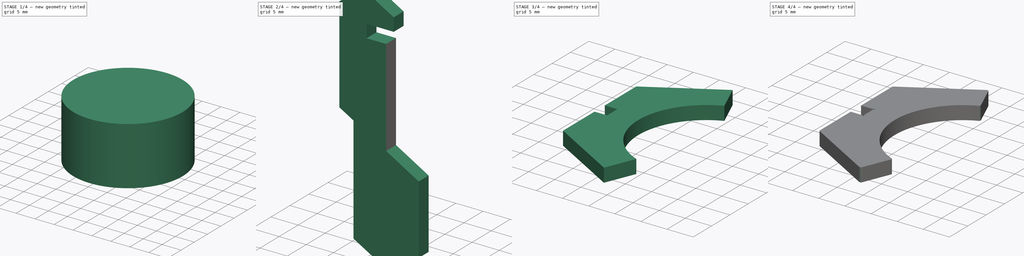
[diagram: build sequence overview — one tinted view per stage of 4, left to right]
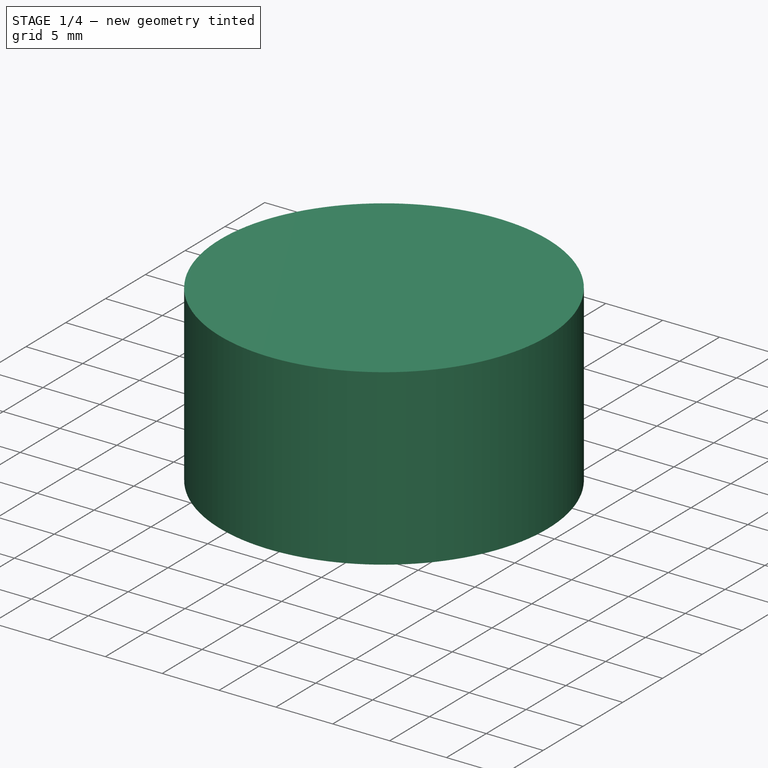
[diagram: stage 1 of 4 — iso view after this stage's code; geometry added in this stage tinted green]
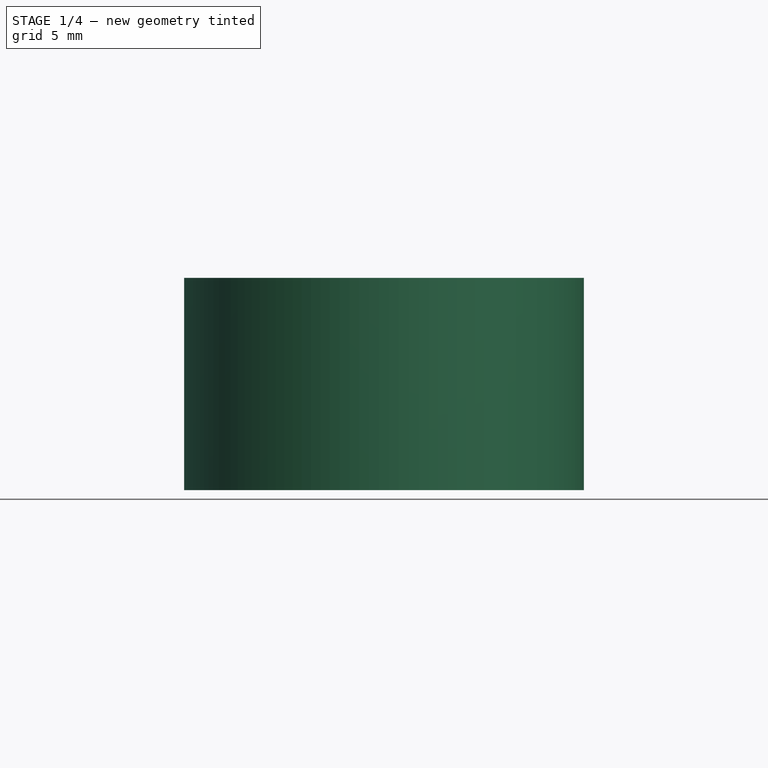
[diagram: stage 1 of 4 — front view after this stage's code; geometry added in this stage tinted green]
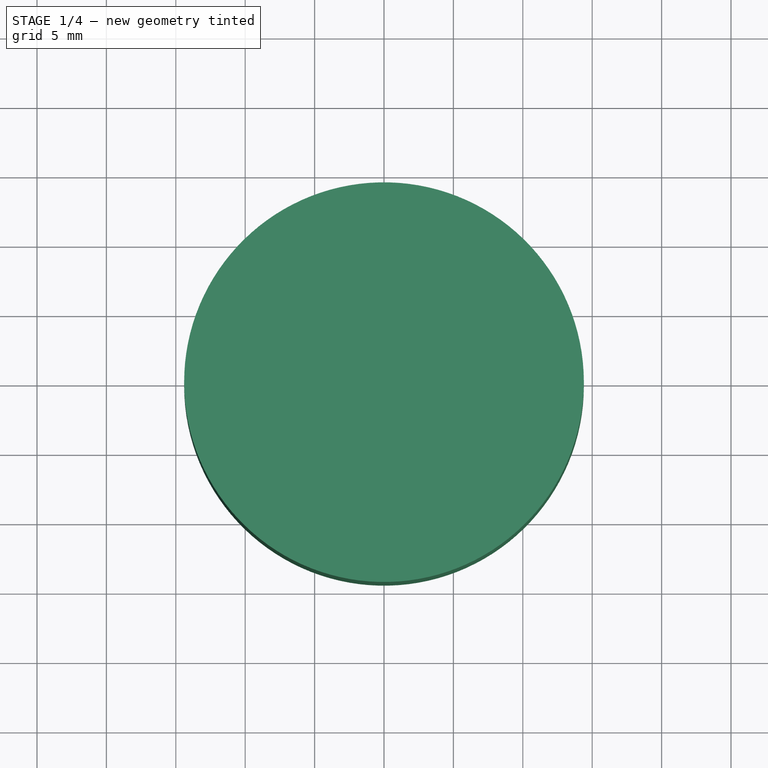
[diagram: stage 1 of 4 — top view after this stage's code; geometry added in this stage tinted green]
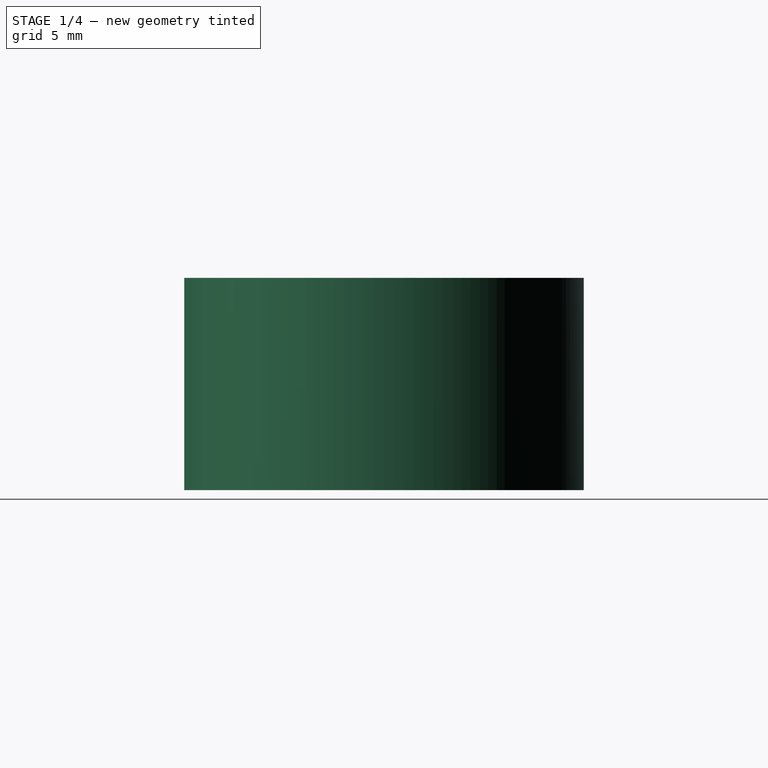
[diagram: stage 1 of 4 — right view after this stage's code; geometry added in this stage tinted green]
FCSTD DOCUMENT  (FreeCAD 1.0R39109 (Git))
Label: Death_Star_focussing_jig_v2
License: All rights reserved
LicenseURL: http://en.wikipedia.org/wiki/All_rights_reserved
objects: PartDesign::SubShapeBinder×8, Sketcher::SketchObject×7, PartDesign::Body×5, PartDesign::Revolution×3, PartDesign::Pad×2, PartDesign::Pocket×2, PartDesign::Fillet×2, Part::Part2DObjectPython×2, Spreadsheet::Sheet×1
note: 56 computed .brp shape members not serialized (recipe doc carries the construction recipe); baked Part::Feature solids carry a one-line shape summary decoded from their .brp

FEATURE [Sketcher::SketchObject] Sketch002
  ArcFitTolerance = 1e-06
  AttachmentSupport = -> [XZ_Plane001]
  FullyConstrained = true
  MakeInternals = false
  MapMode = 5
  Placement = pos=(0,0,0) rot=(1,0,0;1.5708rad)
  expr: Constraints[11] = Spreadsheet001.focus_dist
  expr: Constraints[7] = Spreadsheet001.cone_lower_dia / 2
  expr: Constraints[8] = Spreadsheet001.cone_upper_dia / 2
  expr: Constraints[9] = Spreadsheet001.cone_height
  sketch-geometry (4):
    g0: LineSegment StartX=0 StartY=21.9 StartZ=0 EndX=0 EndY=8.2 EndZ=0
    g1: LineSegment StartX=0 StartY=8.2 StartZ=0 EndX=-2.45 EndY=8.2 EndZ=0
    g2: LineSegment StartX=-2.45 StartY=8.2 StartZ=0 EndX=-10.3 EndY=21.9 EndZ=0
    g3: LineSegment StartX=-10.3 StartY=21.9 StartZ=0 EndX=0 EndY=21.9 EndZ=0
  constraints (12):
    c: Vertical(g0)
    c: Coincident(g0,g1)
    c: Horizontal(g1)
    c: Coincident(g1,g2)
    c: Coincident(g2,g3)
    c: Coincident(g3,g0)
    c: Horizontal(g3)
    c: DistanceX(g1,g1) = 2.45
    c: DistanceX(g3,g3) = 10.3
    c: DistanceY(g0,g0) = 13.7
    c: PointOnObject(g0,g-2)
    c: DistanceY(g-1,g0) = 8.2
FEATURE [PartDesign::Revolution] Revolution
  Angle = 360
  Angle2 = 60
  Axis = (0,2e-16,1)
  Base = (0,0,0)
  Placement = pos=(0,0,0) rot=(1,0,0;1.5708rad)
  Profile = -> Sketch002
  ReferenceAxis = -> Sketch002 [V_Axis]
  Refine = true
  Suppressed = false
  Type = 0
FEATURE [PartDesign::Body] Body001  label="laser_cone"
  AllowCompound = false
  Group = -> [Sketch002,Revolution]
  Origin = -> Origin001
  Tip = -> Revolution
FEATURE [PartDesign::SubShapeBinder] Binder
  BindCopyOnChange = 0
  BindMode = 0
  ClaimChildren = false
  Context = -> Body002 [Binder.]
  Fuse = false
  MakeFace = true
  OffsetFill = false
  OffsetIntersection = false
  OffsetJoinType = 0
  OffsetOpenResult = false
  PartialLoad = false
  Refine = true
  Relative = true
  Support = -> [Body001]
  _Version = 2
FEATURE [Sketcher::SketchObject] Sketch003
  ArcFitTolerance = 1e-06
  AttachmentSupport = -> [XZ_Plane002]
  ExternalGeometry = -> [Binder]
  FullyConstrained = true
  MakeInternals = false
  MapMode = 5
  Placement = pos=(0,0,0) rot=(1,0,0;1.5708rad)
  expr: Constraints[10] = Spreadsheet001.collar_dia / 2
  expr: Constraints[9] = Spreadsheet001.collar_height
  sketch-geometry (4):
    g0: LineSegment StartX=0 StartY=21.9 StartZ=0 EndX=0 EndY=37.2 EndZ=0
    g1: LineSegment StartX=0 StartY=37.2 StartZ=0 EndX=-14.4 EndY=37.2 EndZ=0
    g2: LineSegment StartX=-14.4 StartY=37.2 StartZ=0 EndX=-14.4 EndY=21.9 EndZ=0
    g3: LineSegment StartX=-14.4 StartY=21.9 StartZ=0 EndX=0 EndY=21.9 EndZ=0
  constraints (11):
    c: Coincident(g0,g1)
    c: Coincident(g1,g2)
    c: Coincident(g2,g3)
    c: Coincident(g3,g0)
    c: Vertical(g0)
    c: Vertical(g2)
    c: Horizontal(g1)
    c: Horizontal(g3)
    c: Symmetric(g-3,g-3,g0)
    c: DistanceY(g2,g2) = 15.3
    c: DistanceX(g1,g1) = 14.4
FEATURE [PartDesign::Revolution] Revolution001
  Angle = 360
  Angle2 = 60
  Axis = (0,2e-16,1)
  Base = (0,0,0)
  Placement = pos=(0,0,0) rot=(1,0,0;1.5708rad)
  Profile = -> Sketch003
  ReferenceAxis = -> Sketch003 [V_Axis]
  Refine = true
  Suppressed = false
  Type = 0
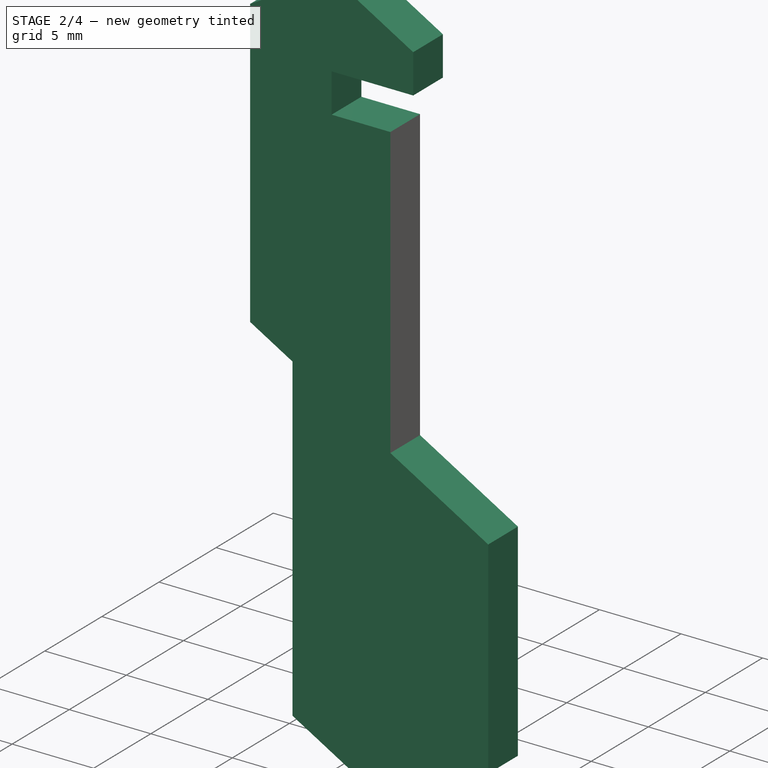
[diagram: stage 2 of 4 — iso view after this stage's code; geometry added in this stage tinted green]
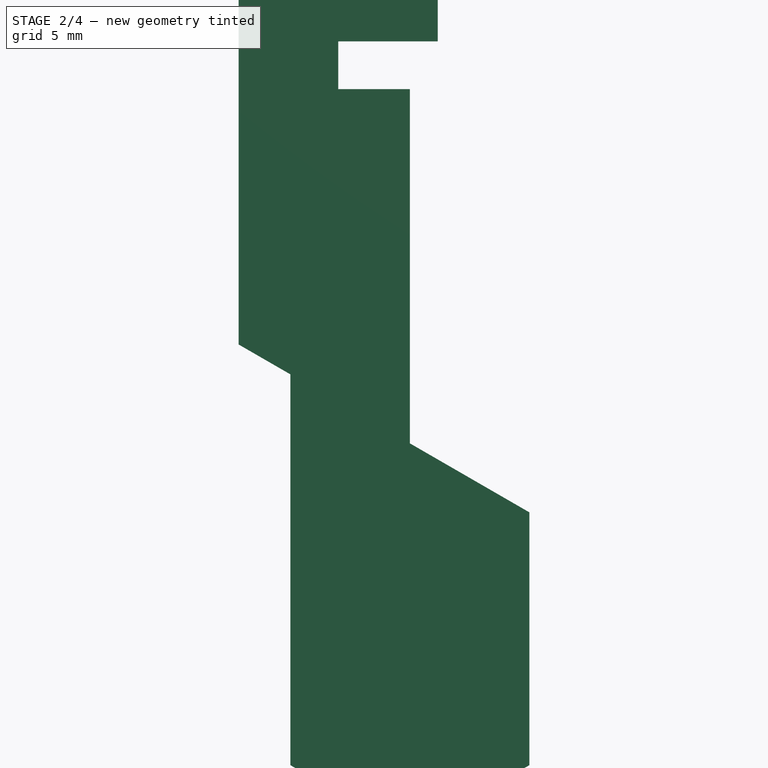
[diagram: stage 2 of 4 — front view after this stage's code; geometry added in this stage tinted green]
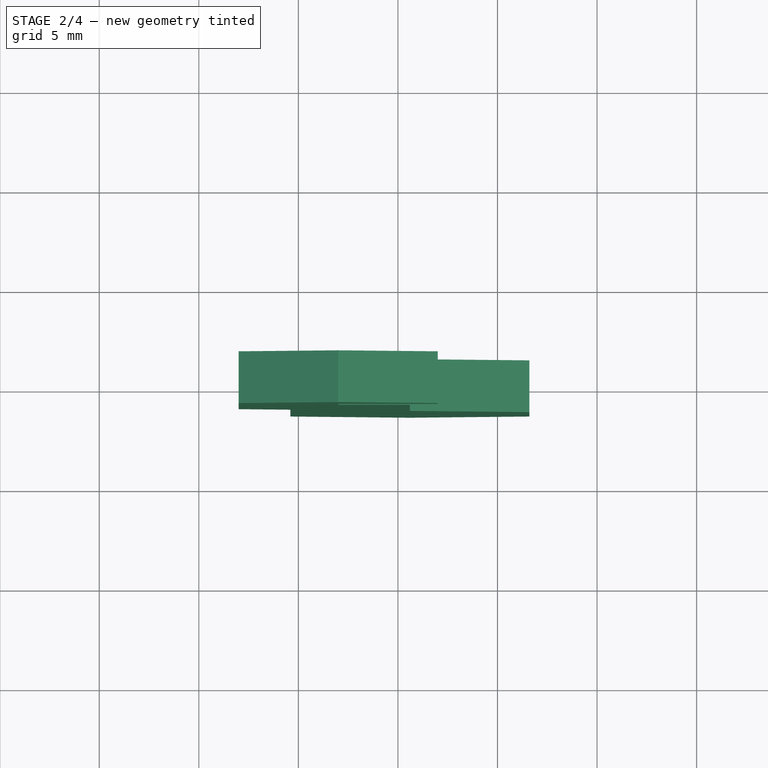
[diagram: stage 2 of 4 — top view after this stage's code; geometry added in this stage tinted green]
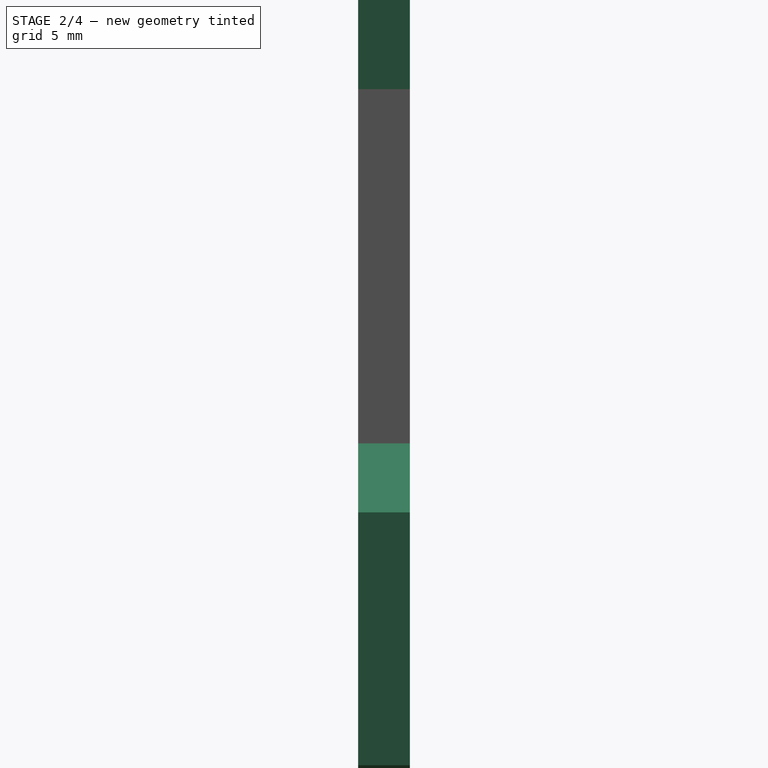
[diagram: stage 2 of 4 — right view after this stage's code; geometry added in this stage tinted green]
FEATURE [PartDesign::Body] Body002  label="laser_collar"
  AllowCompound = false
  Group = -> [Sketch003,Binder,Revolution001]
  Origin = -> Origin002
  Tip = -> Revolution001
FEATURE [PartDesign::SubShapeBinder] Binder001
  BindCopyOnChange = 0
  BindMode = 0
  ClaimChildren = false
  Context = -> Body003 [Binder001.]
  Fuse = false
  MakeFace = true
  OffsetFill = false
  OffsetIntersection = false
  OffsetJoinType = 0
  OffsetOpenResult = false
  PartialLoad = false
  Refine = true
  Relative = true
  Support = -> [Body002]
  _Version = 2
FEATURE [Sketcher::SketchObject] Sketch004
  ArcFitTolerance = 1e-06
  AttachmentSupport = -> [XZ_Plane003]
  ExternalGeometry = -> [Binder001]
  FullyConstrained = true
  MakeInternals = false
  MapMode = 5
  Placement = pos=(0,0,0) rot=(1,0,0;1.5708rad)
  expr: Constraints[10] = Spreadsheet001.mount_tube_height
  expr: Constraints[9] = Spreadsheet001.mount_tube_dia / 2
  sketch-geometry (4):
    g0: LineSegment StartX=0 StartY=37.2 StartZ=0 EndX=0 EndY=76.2 EndZ=0
    g1: LineSegment StartX=0 StartY=76.2 StartZ=0 EndX=-13 EndY=76.2 EndZ=0
    g2: LineSegment StartX=-13 StartY=76.2 StartZ=0 EndX=-13 EndY=37.2 EndZ=0
    g3: LineSegment StartX=-13 StartY=37.2 StartZ=0 EndX=0 EndY=37.2 EndZ=0
  constraints (11):
    c: Coincident(g0,g1)
    c: Coincident(g1,g2)
    c: Coincident(g2,g3)
    c: Coincident(g3,g0)
    c: Vertical(g0)
    c: Vertical(g2)
    c: Horizontal(g1)
    c: Horizontal(g3)
    c: Symmetric(g-3,g-3,g0)
    c: DistanceX(g3,g3) = 13
    c: DistanceY(g2,g2) = 39
FEATURE [PartDesign::Revolution] Revolution002
  Angle = 360
  Angle2 = 60
  Axis = (0,2e-16,1)
  Base = (0,0,0)
  Placement = pos=(0,0,0) rot=(1,0,0;1.5708rad)
  Profile = -> Sketch004
  ReferenceAxis = -> Sketch004 [V_Axis]
  Refine = true
  Suppressed = false
  Type = 0
FEATURE [PartDesign::Body] Body003  label="laser_mount_tube"
  AllowCompound = false
  Group = -> [Sketch004,Binder001,Revolution002]
  Origin = -> Origin003
  Tip = -> Revolution002
FEATURE [PartDesign::SubShapeBinder] Binder002
  BindCopyOnChange = 0
  BindMode = 0
  ClaimChildren = false
  Context = -> Body004 [Binder002.]
  Fuse = false
  MakeFace = true
  OffsetFill = false
  OffsetIntersection = false
  OffsetJoinType = 0
  OffsetOpenResult = false
  PartialLoad = false
  Refine = true
  Relative = true
  Support = -> [Body002]
  _Version = 2
FEATURE [PartDesign::SubShapeBinder] Binder003
  BindCopyOnChange = 0
  BindMode = 0
  ClaimChildren = false
  Context = -> Body004 [Binder003.]
  Fuse = false
  MakeFace = true
  OffsetFill = false
  OffsetIntersection = false
  OffsetJoinType = 0
  OffsetOpenResult = false
  PartialLoad = false
  Refine = true
  Relative = true
  Support = -> [Body001]
  _Version = 2
FEATURE [PartDesign::SubShapeBinder] Binder004
  BindCopyOnChange = 0
  BindMode = 0
  ClaimChildren = false
  Context = -> Body004 [Binder004.]
  Fuse = false
  MakeFace = true
  OffsetFill = false
  OffsetIntersection = false
  OffsetJoinType = 0
  OffsetOpenResult = false
  PartialLoad = false
  Refine = true
  Relative = true
  Support = -> [Body003]
  _Version = 2
FEATURE [Sketcher::SketchObject] Sketch005
  ArcFitTolerance = 1e-06
  AttachmentSupport = -> [XZ_Plane004]
  ExternalGeometry = -> [Binder004,Binder002,Binder003]
  FullyConstrained = true
  MakeInternals = false
  MapMode = 5
  Placement = pos=(0,0,0) rot=(1,0,0;1.5708rad)
  expr: Constraints[32] = Spreadsheet001.acr_thickness - Spreadsheet001.laser_kerf
  expr: Constraints[50] = Spreadsheet001.laser_kerf / 2
  sketch-geometry (18):
    g0: LineSegment StartX=-14.4 StartY=37.3 StartZ=0 EndX=-14.4 EndY=19.5127 EndZ=0
    g1: LineSegment StartX=-14.4 StartY=19.5127 StartZ=0 EndX=-8.4 EndY=16.0486 EndZ=0
    g2: LineSegment StartX=-8.4 StartY=16.0486 StartZ=0 EndX=-8.4 EndY=3.34863 EndZ=0
    g3: LineSegment StartX=-8.4 StartY=3.34863 StartZ=0 EndX=-14.2 EndY=0 EndZ=0
    g4: LineSegment StartX=-14.2 StartY=0 StartZ=0 EndX=-14.6 EndY=0 EndZ=0
    g5: LineSegment StartX=-14.6 StartY=0 StartZ=0 EndX=-20.4 EndY=3.34863 EndZ=0
    g6: LineSegment StartX=-20.4 StartY=3.34863 StartZ=0 EndX=-20.4 EndY=22.9768 EndZ=0
    g7: LineSegment StartX=-20.4 StartY=22.9768 StartZ=0 EndX=-23 EndY=24.4779 EndZ=0
    g8: LineSegment StartX=-23 StartY=24.4779 StartZ=0 EndX=-23 EndY=42.1 EndZ=0
    g9: LineSegment StartX=-23 StartY=42.1 StartZ=0 EndX=-18 EndY=44.9868 EndZ=0
    g10: LineSegment StartX=-18 StartY=44.9868 StartZ=0 EndX=-13 EndY=42.1 EndZ=0
    g11: LineSegment StartX=-13 StartY=42.1 StartZ=0 EndX=-13 EndY=39.7 EndZ=0
    g12: LineSegment StartX=-13 StartY=39.7 StartZ=0 EndX=-18 EndY=39.7 EndZ=0
    g13: LineSegment StartX=-18 StartY=39.7 StartZ=0 EndX=-18 EndY=37.3 EndZ=0
    g14: LineSegment [constr] StartX=-14.4 StartY=19.5127 StartZ=0 EndX=-14.4 EndY=0 EndZ=0
    g15: LineSegment [constr] StartX=-20.4 StartY=22.9768 StartZ=0 EndX=-14.4 EndY=19.5127 EndZ=0
    g16: LineSegment [constr] StartX=-18 StartY=39.7 StartZ=0 EndX=-23 EndY=39.7 EndZ=0
    g17: LineSegment StartX=-18 StartY=37.3 StartZ=0 EndX=-14.4 EndY=37.3 EndZ=0
  constraints (51):
    c: Coincident(g0,g1)
    c: Coincident(g1,g2)
    c: Vertical(g2)
    c: Coincident(g2,g3)
    c: Coincident(g3,g4)
    c: Horizontal(g4)
    c: Coincident(g4,g5)
    c: Coincident(g5,g6)
    c: Vertical(g6)
    c: Coincident(g6,g7)
    c: Coincident(g7,g8)
    c: Vertical(g8)
    c: Coincident(g8,g9)
    c: Coincident(g9,g10)
    c: PointOnObject(g10,g-3)
    c: Coincident(g10,g11)
    c: PointOnObject(g11,g-3)
    c: Coincident(g11,g12)
    c: Horizontal(g12)
    c: Vertical(g13)
    c: Vertical(g0)
    c: PointOnObject(g3,g-1)
    c: DistanceX(g4,g4) = 0.4
    c: Equal(g5,g3)
    c: Angle(g3,g5) = 2.0944
    c: Coincident(g14,g0)
    c: Symmetric(g4,g4,g14)
    c: Angle(g1,g2) = 2.0944
    c: Angle(g7,g6) = 2.0944
    c: Symmetric(g2,g5,g14)
    c: Angle(g9,g10) = 2.0944
    c: DistanceX(g5,g2) = 12
    c: DistanceY(g13,g13) = 2.4
    c: Equal(g11,g13)
    c: Coincident(g15,g6)
    c: Coincident(g15,g0)
    c: Parallel(g15,g1)
    c: DistanceY(g2,g2) = 12.7
    c: Horizontal(g8,g10)
    c: Equal(g9,g10)
    c: DistanceX(g8,g10) = 10
    c: Coincident(g12,g13)
    c: Coincident(g16,g12)
    c: PointOnObject(g16,g8)
    c: Horizontal(g16)
    c: Equal(g16,g12)
    c: Coincident(g17,g13)
    c: Horizontal(g17)
    c: Coincident(g0,g17)
    c: Vertical(g0,g-4)
    c: Distance(g0,g-4) = 0.1
FEATURE [Spreadsheet::Sheet] Spreadsheet001
  cells = A1='focus_dist; B1(focus_dist)=8.2; A2='acr_thickness; B2(acr_thickness)=2.6; A3='cone_upper_dia; B3(cone_upper_dia)=20.6; A4='cone_lower_dia; B4(cone_lower_dia)=4.9; A5='cone_height; B5(cone_height)=13.7; A6='collar_dia; B6(collar_dia)=28.8; A7='collar_height; B7(collar_height)=15.3; A8='mount_tube_dia; B8(mount_tube_dia)=26; A9='mount_tube_height; B9(mount_tube_height)=39; A10='laser_kerf; B10(laser_kerf)=0.2
FEATURE [PartDesign::Pad] Pad002
  Direction = (0,-1,2e-16)
  Length = 2.6
  Length2 = 10
  Midplane = true
  Placement = pos=(0,0,0) rot=(1,0,0;1.5708rad)
  Profile = -> Sketch005
  ReferenceAxis = -> Sketch005 [N_Axis]
  Refine = true
  Suppressed = false
  Type = 0
  expr: Length = Spreadsheet001.acr_thickness
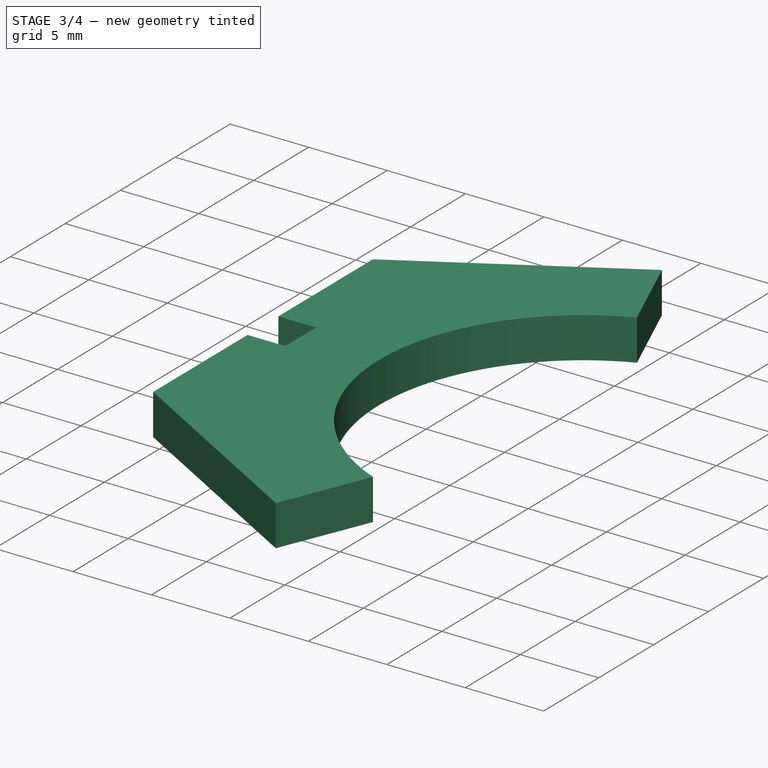
[diagram: stage 3 of 4 — iso view after this stage's code; geometry added in this stage tinted green]
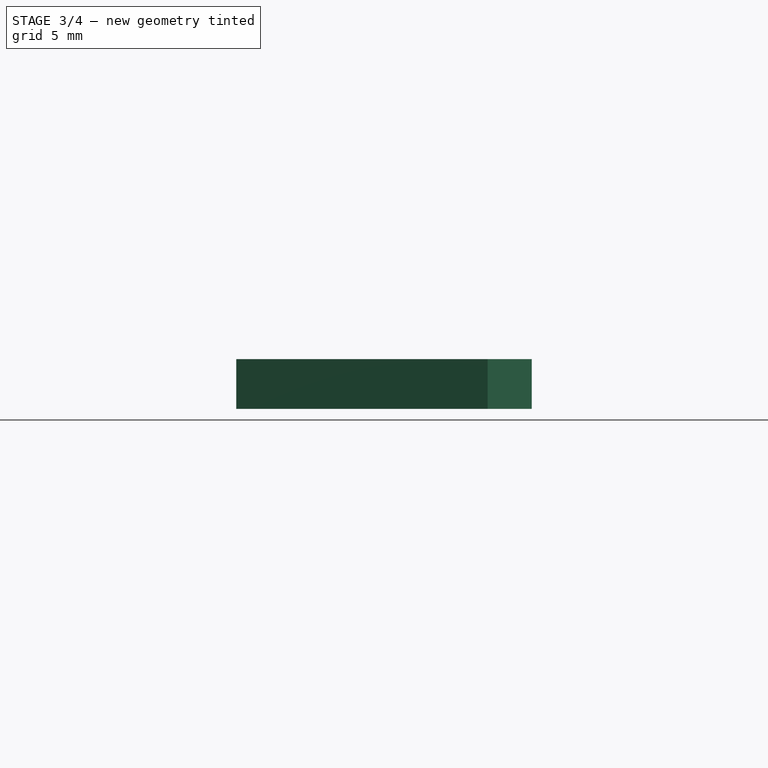
[diagram: stage 3 of 4 — front view after this stage's code; geometry added in this stage tinted green]
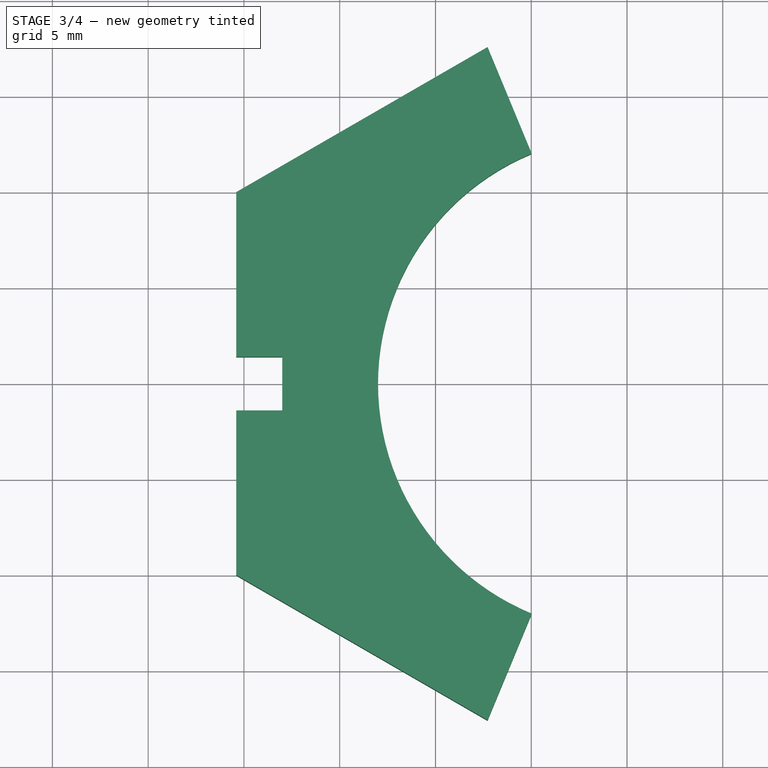
[diagram: stage 3 of 4 — top view after this stage's code; geometry added in this stage tinted green]
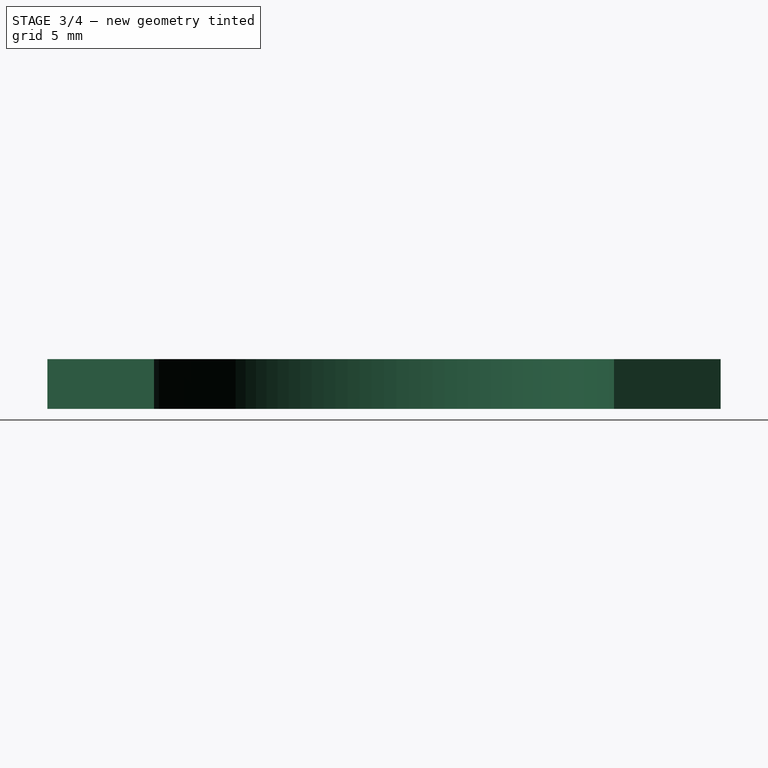
[diagram: stage 3 of 4 — right view after this stage's code; geometry added in this stage tinted green]
FEATURE [PartDesign::SubShapeBinder] Binder005
  BindCopyOnChange = 0
  BindMode = 0
  ClaimChildren = false
  Context = -> Body005 [Binder005.]
  Fuse = false
  MakeFace = true
  OffsetFill = false
  OffsetIntersection = false
  OffsetJoinType = 0
  OffsetOpenResult = false
  PartialLoad = false
  Refine = true
  Relative = true
  Support = -> [Body002]
  _Version = 2
FEATURE [PartDesign::SubShapeBinder] Binder007
  BindCopyOnChange = 0
  BindMode = 0
  ClaimChildren = false
  Context = -> Body005 [Binder007.]
  Fuse = false
  MakeFace = true
  OffsetFill = false
  OffsetIntersection = false
  OffsetJoinType = 0
  OffsetOpenResult = false
  PartialLoad = false
  Refine = true
  Relative = true
  Support = -> [Body003]
  _Version = 2
FEATURE [Sketcher::SketchObject] Sketch
  ArcFitTolerance = 1e-06
  AttachmentSupport = -> [XZ_Plane004]
  ExternalGeometry = -> [Pad002]
  FullyConstrained = true
  MakeInternals = false
  MapMode = 5
  Placement = pos=(0,0,0) rot=(1,0,0;1.5708rad)
  sketch-geometry (12):
    g0: ArcOfCircle CenterX=-18 CenterY=39.7 CenterZ=0 NormalX=0 NormalY=0 NormalZ=1 AngleXU=0 Radius=0.15 StartAngle=0.523599 EndAngle=4.18879
    g1: ArcOfCircle CenterX=-18.15 CenterY=39.4402 CenterZ=0 NormalX=0 NormalY=0 NormalZ=1 AngleXU=0 Radius=0.15 StartAngle=0 EndAngle=1.0472
    g2: ArcOfCircle CenterX=-17.7402 CenterY=39.85 CenterZ=0 NormalX=0 NormalY=0 NormalZ=1 AngleXU=0 Radius=0.15 StartAngle=3.66519 EndAngle=4.71239
    g3: LineSegment StartX=-18 StartY=39.4402 StartZ=0 EndX=-17.7402 EndY=39.7 EndZ=0
    g4: LineSegment [constr] StartX=-18.15 StartY=39.4402 StartZ=0 EndX=-18 EndY=39.4402 EndZ=0
    g5: LineSegment [constr] StartX=-17.7402 StartY=39.85 StartZ=0 EndX=-17.7402 EndY=39.7 EndZ=0
    g6: ArcOfCircle CenterX=-18 CenterY=37.3 CenterZ=0 NormalX=0 NormalY=0 NormalZ=1 AngleXU=0 Radius=0.15 StartAngle=2.0944 EndAngle=5.75959
    g7: LineSegment [constr] StartX=-18.15 StartY=37.5598 StartZ=0 EndX=-18 EndY=37.5598 EndZ=0
    g8: LineSegment [constr] StartX=-17.7402 StartY=37.15 StartZ=0 EndX=-17.7402 EndY=37.3 EndZ=0
    g9: ArcOfCircle CenterX=-17.7402 CenterY=37.15 CenterZ=0 NormalX=0 NormalY=0 NormalZ=1 AngleXU=0 Radius=0.15 StartAngle=1.5708 EndAngle=2.61799
    g10: ArcOfCircle CenterX=-18.15 CenterY=37.5598 CenterZ=0 NormalX=0 NormalY=0 NormalZ=1 AngleXU=0 Radius=0.15 StartAngle=5.23599 EndAngle=6.28319
    g11: LineSegment StartX=-18 StartY=37.5598 StartZ=0 EndX=-17.7402 EndY=37.3 EndZ=0
  constraints (32):
    c: Diameter(g0) = 0.3
    c: Coincident(g0,g-3)
    c: Tangent(g2,g-4)
    c: Tangent(g1,g-3)
    c: Equal(g1,g2)
    c: Equal(g2,g0)
    c: Coincident(g4,g1)
    c: Coincident(g4,g3)
    c: Horizontal(g4)
    c: Coincident(g5,g2)
    c: Coincident(g5,g3)
    c: Vertical(g5)
    c: Coincident(g1,g3)
    c: Coincident(g2,g3)
    c: Tangent(g0,g1) = 1.5708
    c: Tangent(g0,g2) = 1.5708
    c: Coincident(g6,g-5)
    c: Coincident(g9,g8)
    c: Coincident(g9,g8)
    c: Coincident(g10,g7)
    c: Coincident(g10,g7)
    c: Equal(g6,g0)
    c: Tangent(g-5,g9)
    c: Tangent(g10,g-3)
    c: Equal(g10,g9)
    c: Equal(g9,g6)
    c: Horizontal(g7)
    c: Vertical(g8)
    c: Tangent(g9,g6) = 1.5708
    c: Tangent(g10,g6) = 1.5708
    c: Coincident(g11,g7)
    c: Coincident(g11,g8)
FEATURE [PartDesign::Pocket] Pocket
  BaseFeature = -> Pad002
  Direction = (0,1,-2e-16)
  Length = 5
  Length2 = 5
  Midplane = true
  Placement = pos=(0,0,0) rot=(1,0,0;1.5708rad)
  Profile = -> Sketch
  ReferenceAxis = -> Sketch [N_Axis]
  Refine = true
  Suppressed = false
  Type = 1
FEATURE [PartDesign::SubShapeBinder] Binder008
  BindCopyOnChange = 0
  BindMode = 0
  ClaimChildren = false
  Context = -> Body005 [Binder008.]
  Fuse = false
  MakeFace = true
  OffsetFill = false
  OffsetIntersection = false
  OffsetJoinType = 0
  OffsetOpenResult = false
  PartialLoad = false
  Refine = true
  Relative = true
  Support = -> [Body004[Pad002.]]
  _Version = 2
FEATURE [Sketcher::SketchObject] Sketch006
  ArcFitTolerance = 1e-06
  AttachmentSupport = -> [Binder005]
  ExternalGeometry = -> [Binder007,Binder008]
  FullyConstrained = true
  MakeInternals = false
  MapMode = 5
  Placement = pos=(0,8.3e-15,37.2) rot=(0,0,1;0rad)
  expr: Constraints[23] = Spreadsheet001.laser_kerf / 2
  sketch-geometry (12):
    g0: LineSegment StartX=-18 StartY=1.4 StartZ=0 EndX=-18 EndY=-1.4 EndZ=0
    g1: LineSegment StartX=-20.4 StartY=-1.4 StartZ=0 EndX=-20.4 EndY=-10 EndZ=0
    g2: LineSegment StartX=-20.4 StartY=-10 StartZ=0 EndX=-7.27979 EndY=-17.575 EndZ=0
    g3: LineSegment StartX=-7.27979 StartY=-17.575 StartZ=0 EndX=-4.97488 EndY=-12.0104 EndZ=0
    g4: ArcOfCircle CenterX=0 CenterY=0 CenterZ=0 NormalX=0 NormalY=0 NormalZ=1 AngleXU=0 Radius=13 StartAngle=1.9635 EndAngle=4.31969
    g5: LineSegment StartX=-4.97488 StartY=12.0104 StartZ=0 EndX=-7.27979 EndY=17.575 EndZ=0
    g6: LineSegment StartX=-7.27979 StartY=17.575 StartZ=0 EndX=-20.4 EndY=10 EndZ=0
    g7: LineSegment StartX=-20.4 StartY=10 StartZ=0 EndX=-20.4 EndY=1.4 EndZ=0
    g8: LineSegment [constr] StartX=-18 StartY=1.4 StartZ=0 EndX=-18 EndY=1.3 EndZ=0
    g9: LineSegment [constr] StartX=-18 StartY=-1.4 StartZ=0 EndX=-18 EndY=-1.3 EndZ=0
    g10: LineSegment StartX=-20.4 StartY=1.4 StartZ=0 EndX=-18 EndY=1.4 EndZ=0
    g11: LineSegment StartX=-20.4 StartY=-1.4 StartZ=0 EndX=-18 EndY=-1.4 EndZ=0
  constraints (34):
    c: Vertical(g1)
    c: Coincident(g1,g2)
    c: Coincident(g2,g3)
    c: PointOnObject(g3,g-3)
    c: Coincident(g4,g5)
    c: Coincident(g5,g6)
    c: Coincident(g6,g7)
    c: Vertical(g7)
    c: Equal(g7,g1)
    c: Angle(g7,g6) = 2.0944
    c: Angle(g2,g1) = 2.0944
    c: Coincident(g-1,g4)
    c: Coincident(g4,g3)
    c: Equal(g3,g5)
    c: DistanceY(g1,g6) = 20
    c: Perpendicular(g4,g3)
    c: Perpendicular(g4,g5)
    c: Angle(g5,g3) = 2.35619
    c: Vertical(g0)
    c: Coincident(g8,g0)
    c: Vertical(g8)
    c: Coincident(g9,g0)
    c: Equal(g8,g9)
    c: Distance(g8,g8) = 0.1
    c: Coincident(g8,g-4)
    c: Coincident(g9,g-4)
    c: Coincident(g10,g7)
    c: Coincident(g10,g0)
    c: Horizontal(g10)
    c: Coincident(g11,g1)
    c: Coincident(g11,g0)
    c: Horizontal(g11)
    c: PointOnObject(g7,g-5)
    c: PointOnObject(g1,g-5)
FEATURE [PartDesign::Pad] Pad003
  Direction = (0,0,1)
  Length = 2.6
  Length2 = 10
  Profile = -> Sketch006
  ReferenceAxis = -> Sketch006 [N_Axis]
  Refine = true
  Suppressed = false
  Type = 0
  expr: Length = Spreadsheet001.acr_thickness
FEATURE [PartDesign::Body] Body005  label="jig_support"
  AllowCompound = false
  Group = -> [Binder005,Sketch006,Binder007,Pad003,Binder008,Sketch007,Pocket001,Fillet]
  Origin = -> Origin005
  Tip = -> Fillet
FEATURE [Part::Part2DObjectPython] Shape2DView001  # Draft 2D object (typed FeaturePython)
  AutoUpdate = true
  Base = -> Body005
  Clip = false
  FuseArch = false
  HiddenLines = false
  InPlace = true
  OnlySolids = false
  Placement = pos=(0,2,0) rot=(0,0,1;0rad)
  Projection = (0,0,1)
  ProjectionMode = 0
  SegmentLength = 0.05
  Tessellation = false
  VisibleOnly = false
FEATURE [PartDesign::Fillet] Fillet001
  Base = -> Pocket [Edge56,Edge57,Edge58,Edge2,Edge8,Edge48,Edge61,Edge59,Edge60]
  BaseFeature = -> Pocket
  Placement = pos=(0,0,0) rot=(1,0,0;1.5708rad)
  Radius = 0.3
  Refine = true
  SupportTransform = false
  Suppressed = false
  UseAllEdges = false
FEATURE [PartDesign::Body] Body004  label="jig_main"
  AllowCompound = false
  Group = -> [Binder002,Binder003,Binder004,Sketch005,Pad002,Sketch,Pocket,Fillet001]
  Origin = -> Origin004
  Tip = -> Fillet001
FEATURE [Part::Part2DObjectPython] Shape2DView  # Draft 2D object (typed FeaturePython)
  AutoUpdate = true
  Base = -> Body004
  Clip = false
  FuseArch = false
  HiddenLines = false
  InPlace = true
  OnlySolids = false
  Placement = pos=(-7.5,-27.3,0) rot=(0,0,1;4.71239rad)
  Projection = (0,-1,0)
  ProjectionMode = 0
  SegmentLength = 0.05
  Tessellation = false
  VisibleOnly = false
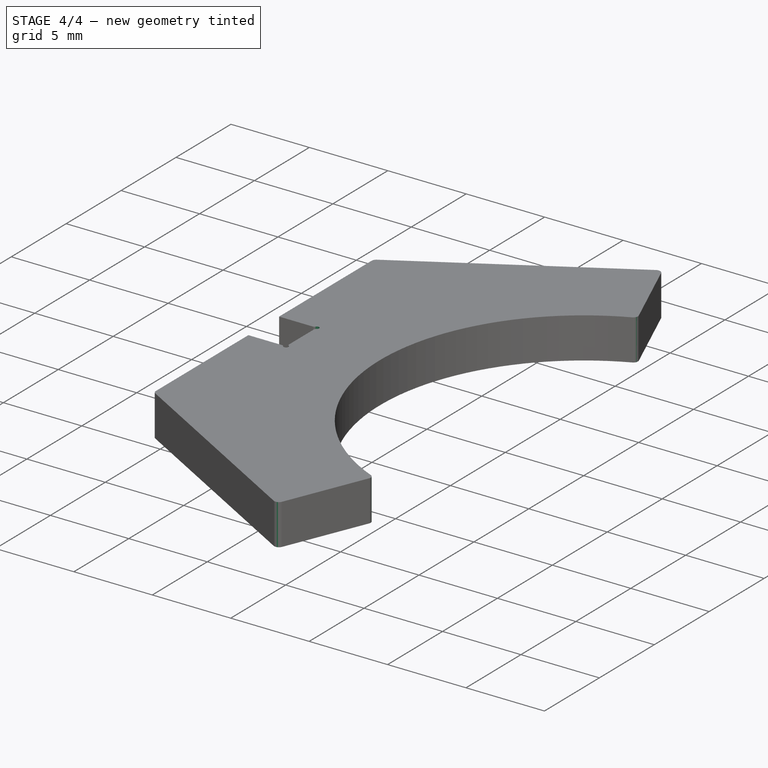
[diagram: stage 4 of 4 — iso view after this stage's code; geometry added in this stage tinted green]
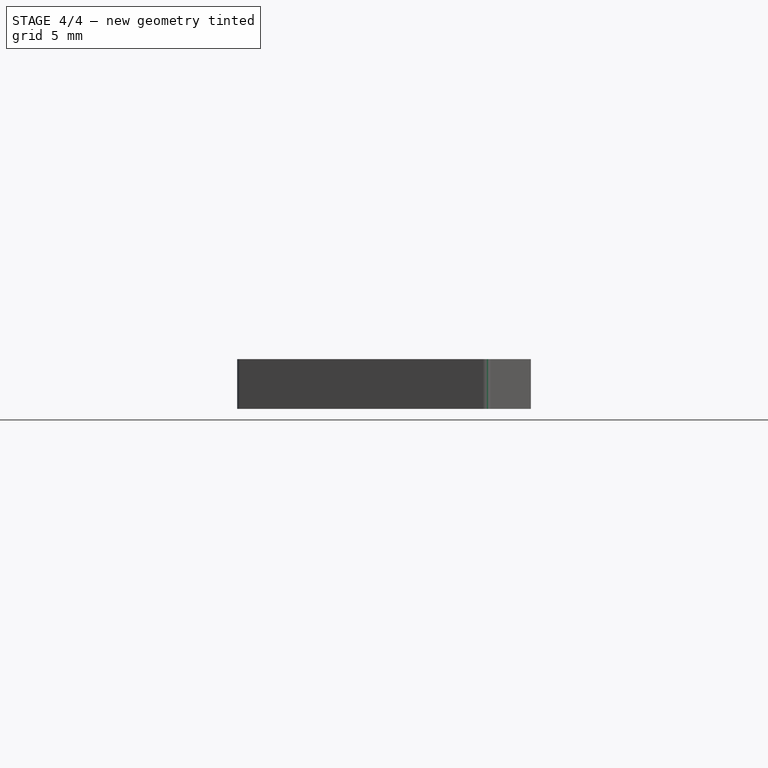
[diagram: stage 4 of 4 — front view after this stage's code; geometry added in this stage tinted green]
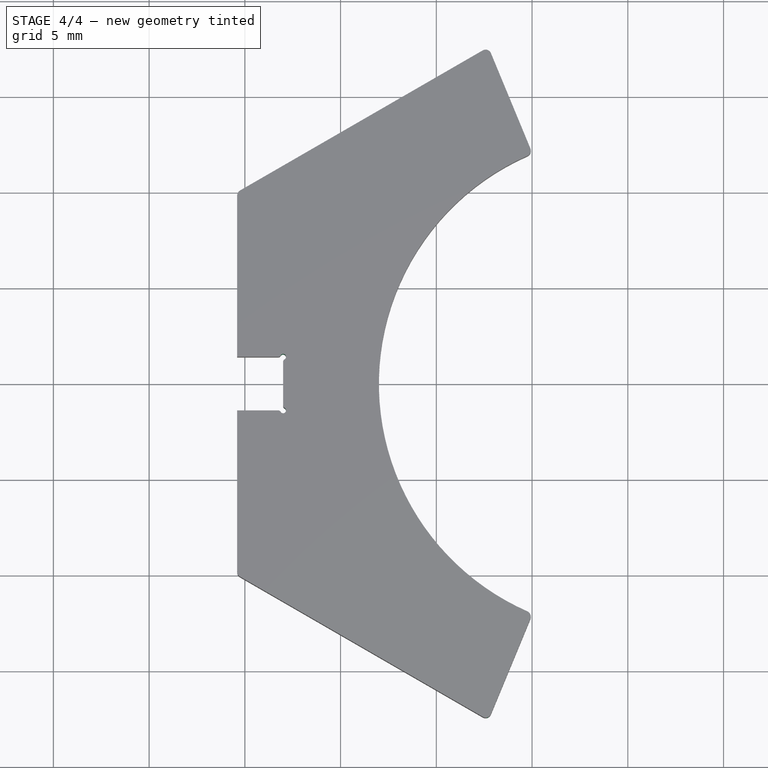
[diagram: stage 4 of 4 — top view after this stage's code; geometry added in this stage tinted green]
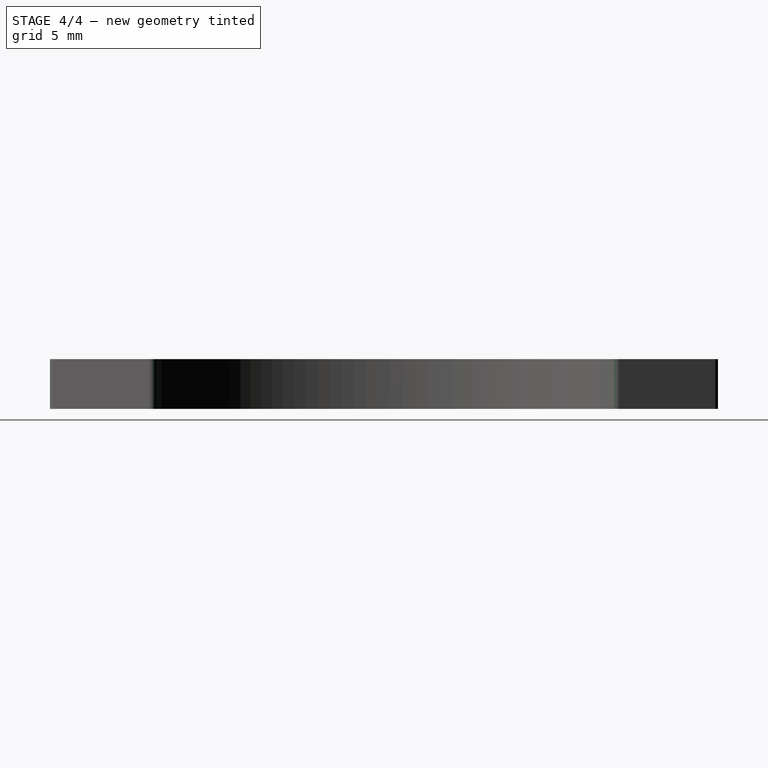
[diagram: stage 4 of 4 — right view after this stage's code; geometry added in this stage tinted green]
FEATURE [Sketcher::SketchObject] Sketch007
  ArcFitTolerance = 1e-06
  AttachmentSupport = -> [Pad003]
  ExternalGeometry = -> [Pad003]
  FullyConstrained = true
  MakeInternals = false
  MapMode = 5
  Placement = pos=(0,0,39.8) rot=(0,0,1;0rad)
  sketch-geometry (12):
    g0: ArcOfCircle CenterX=-18 CenterY=1.4 CenterZ=0 NormalX=0 NormalY=0 NormalZ=1 AngleXU=0 Radius=0.15 StartAngle=5.23599 EndAngle=8.90118
    g1: ArcOfCircle CenterX=-18.2598 CenterY=1.55 CenterZ=0 NormalX=0 NormalY=0 NormalZ=1 AngleXU=0 Radius=0.15 StartAngle=4.71239 EndAngle=5.75959
    g2: ArcOfCircle CenterX=-17.85 CenterY=1.14019 CenterZ=0 NormalX=0 NormalY=0 NormalZ=1 AngleXU=0 Radius=0.15 StartAngle=2.0944 EndAngle=3.14159
    g3: ArcOfCircle CenterX=-18 CenterY=-1.4 CenterZ=0 NormalX=0 NormalY=0 NormalZ=1 AngleXU=0 Radius=0.15 StartAngle=3.66519 EndAngle=7.33038
    g4: ArcOfCircle CenterX=-18.2598 CenterY=-1.55 CenterZ=0 NormalX=0 NormalY=0 NormalZ=1 AngleXU=0 Radius=0.15 StartAngle=0.523599 EndAngle=1.5708
    g5: ArcOfCircle CenterX=-17.85 CenterY=-1.14019 CenterZ=0 NormalX=0 NormalY=0 NormalZ=1 AngleXU=0 Radius=0.15 StartAngle=3.14159 EndAngle=4.18879
    g6: LineSegment [constr] StartX=-18.2598 StartY=1.55 StartZ=0 EndX=-18.2598 EndY=1.4 EndZ=0
    g7: LineSegment [constr] StartX=-17.85 StartY=1.14019 StartZ=0 EndX=-18 EndY=1.14019 EndZ=0
    g8: LineSegment [constr] StartX=-18.2598 StartY=-1.55 StartZ=0 EndX=-18.2598 EndY=-1.4 EndZ=0
    g9: LineSegment [constr] StartX=-17.85 StartY=-1.14019 StartZ=0 EndX=-18 EndY=-1.14019 EndZ=0
    g10: LineSegment StartX=-18 StartY=-1.14019 StartZ=0 EndX=-18.2598 EndY=-1.4 EndZ=0
    g11: LineSegment StartX=-18.2598 StartY=1.4 StartZ=0 EndX=-18 EndY=1.14019 EndZ=0
  constraints (32):
    c: Coincident(g0,g-4)
    c: Coincident(g3,g-5)
    c: Tangent(g1,g-3)
    c: Tangent(g2,g-4)
    c: Tangent(g5,g-4)
    c: Tangent(g4,g-5)
    c: Equal(g1,g0)
    c: Equal(g0,g2)
    c: Equal(g2,g5)
    c: Equal(g5,g3)
    c: Equal(g3,g4)
    c: Diameter(g0) = 0.3
    c: Coincident(g6,g1)
    c: Coincident(g7,g2)
    c: Horizontal(g7)
    c: Coincident(g8,g4)
    c: Vertical(g8)
    c: Coincident(g9,g5)
    c: Horizontal(g9)
    c: Coincident(g10,g9)
    c: Coincident(g10,g8)
    c: Coincident(g11,g6)
    c: Coincident(g11,g7)
    c: Coincident(g1,g11)
    c: Coincident(g2,g11)
    c: Tangent(g0,g1) = 1.5708
    c: Tangent(g0,g2) = 1.5708
    c: Vertical(g6)
    c: Coincident(g5,g10)
    c: Tangent(g3,g5) = 1.5708
    c: Coincident(g4,g8)
    c: Tangent(g4,g3) = 1.5708
FEATURE [PartDesign::Pocket] Pocket001
  BaseFeature = -> Pad003
  Direction = (0,0,-1)
  Length = 5
  Length2 = 5
  Profile = -> Sketch007
  ReferenceAxis = -> Sketch007 [N_Axis]
  Refine = true
  Suppressed = false
  Type = 1
FEATURE [PartDesign::Fillet] Fillet
  Base = -> Pocket001 [Edge1,Edge2,Edge5,Edge37,Edge39,Edge8]
  BaseFeature = -> Pocket001
  Radius = 0.3
  Refine = true
  SupportTransform = false
  Suppressed = false
  UseAllEdges = false
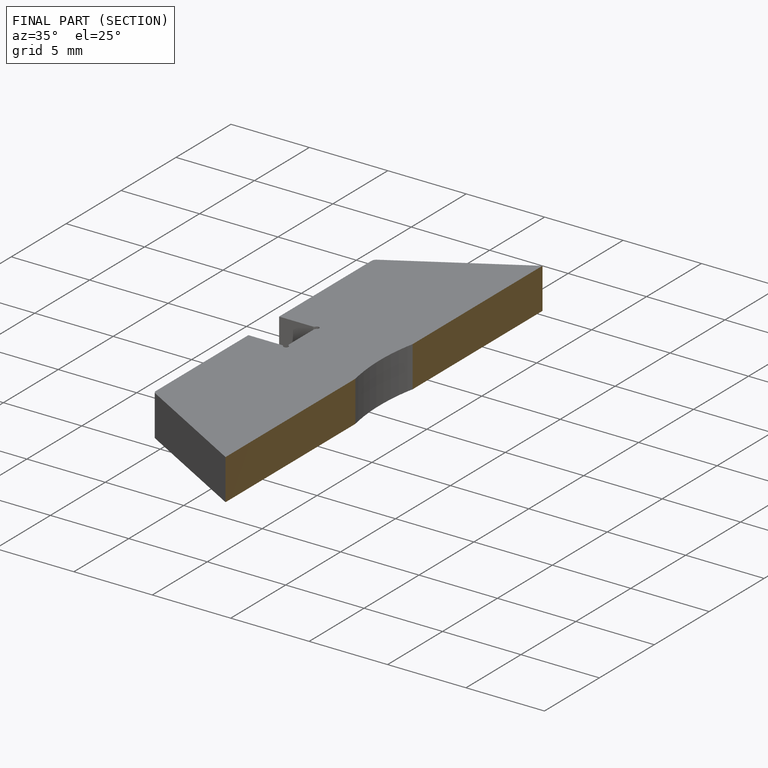
[diagram: finished part — half-section view (interior)]
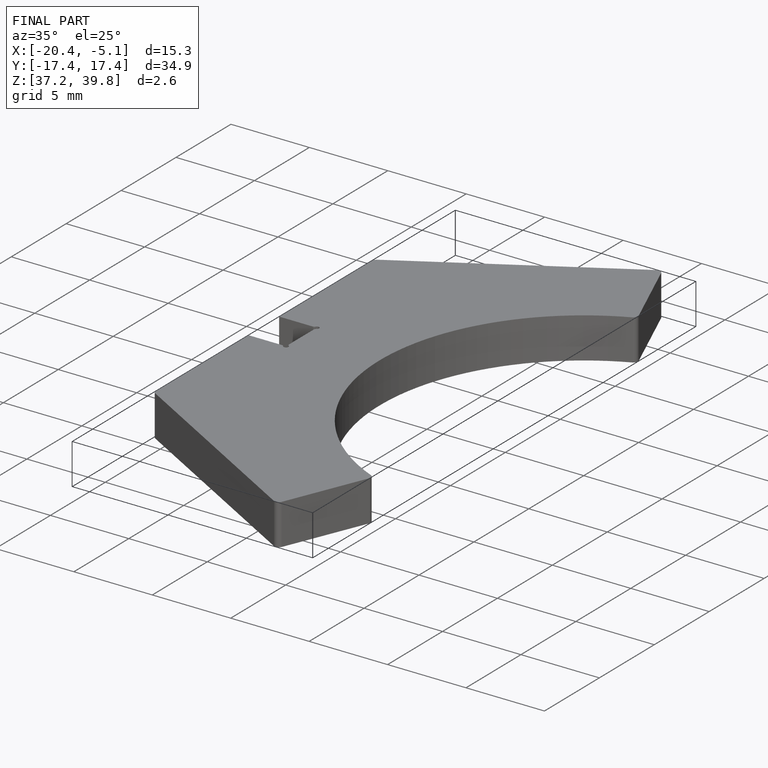
[diagram: finished part — iso view with bounding-box wireframe]
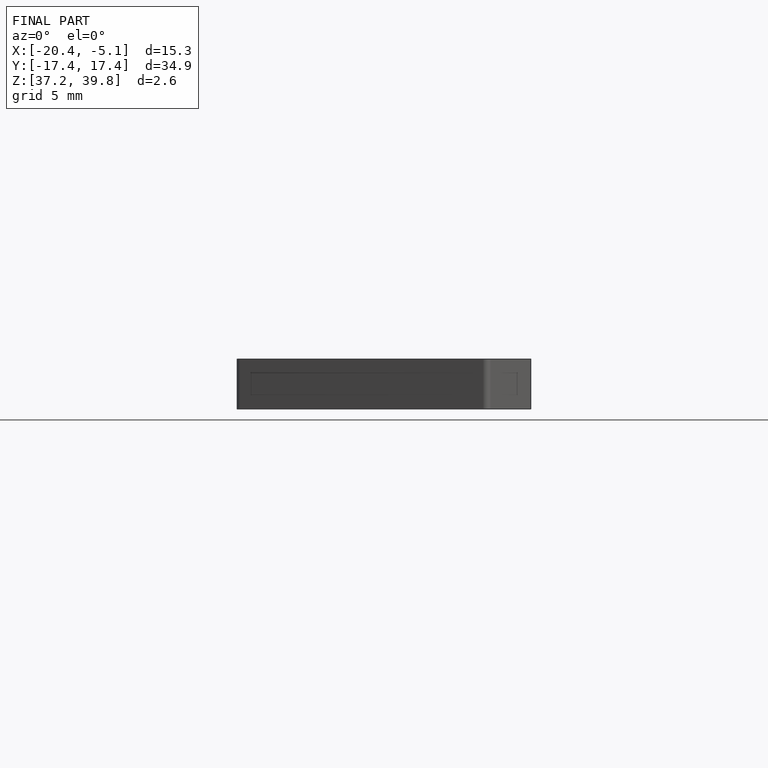
[diagram: finished part — front view with bounding-box wireframe]
